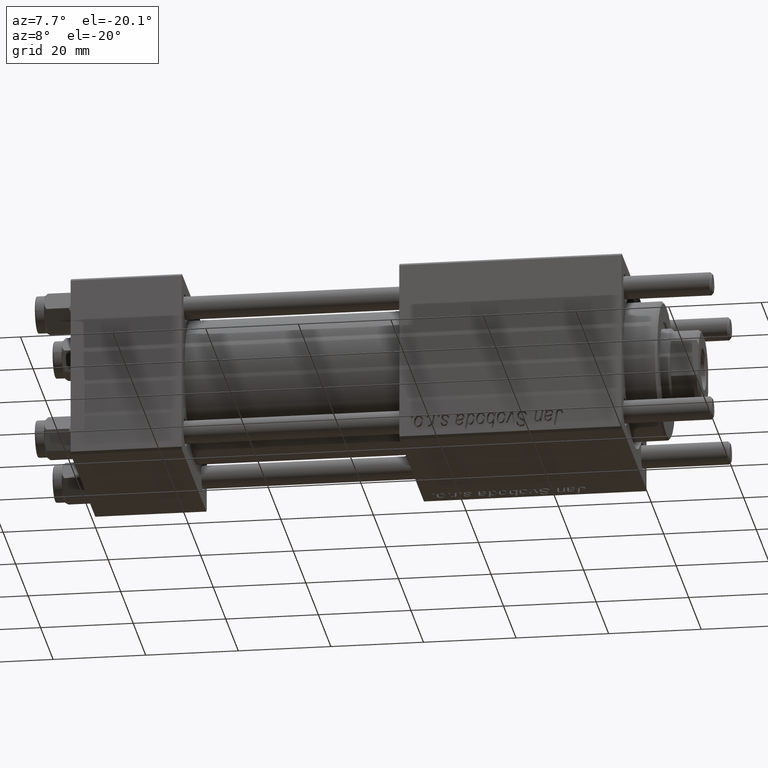
[diagram: clean part render]
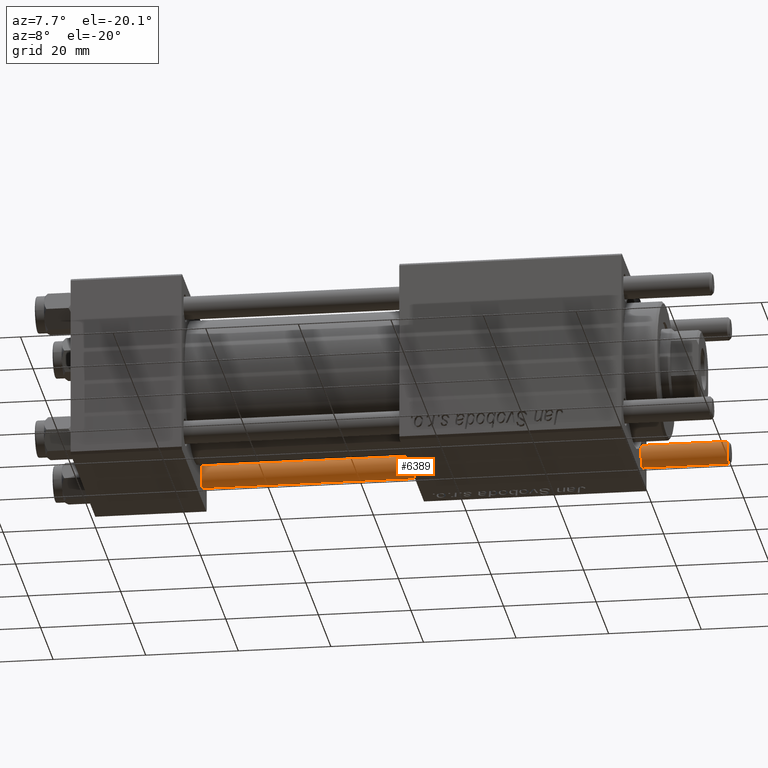
[diagram: same view with one face highlighted and labeled with its STEP entity id]
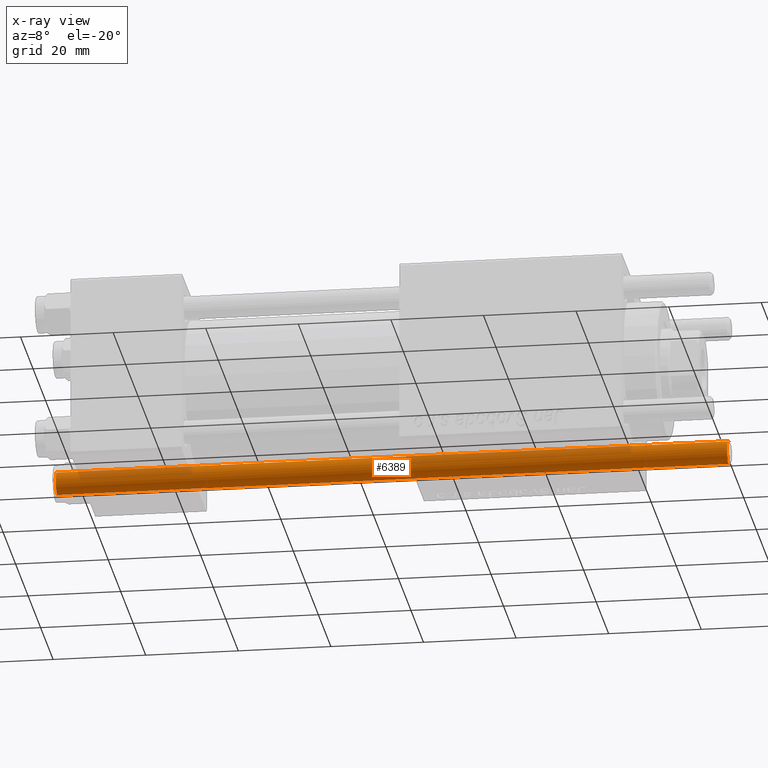
[diagram: x-ray of the same camera — body ghosted, the highlighted face saturated]
A machine part, auxiliary view. The second image highlights one B-rep face of the part: STEP entity #6389.
The next image is the same camera in x-ray: the body ghosted, the highlighted face saturated — about 18% of this face is hidden behind the body in this view.
In plain terms, the highlighted cylindrical surface (edge-blend (fillet) strip) has radius 2.5 mm, axis along (-1, -0, 0).
Its self-contained STEP definition (entity closure, byte-faithful):
#1382 = VERTEX_POINT ( 'NONE', #8318 ) ;
#3250 = FACE_OUTER_BOUND ( 'NONE', #32576, .T. ) ;
#5473 = DIRECTION ( 'NONE',  ( -0.000000000000000000, -0.000000000000000000, 1.000000000000000000 ) ) ;
#6389 = ADVANCED_FACE ( 'NONE', ( #3250 ), #42801, .T. ) ;
#7440 = CARTESIAN_POINT ( 'NONE',  ( 2.500000000000000000, 3.061616997868383141E-16, 145.5000000000000284 ) ) ;
#7465 = CARTESIAN_POINT ( 'NONE',  ( -2.500000000000000000, 0.000000000000000000, 0.5000000000000559552 ) ) ;
#7735 = LINE ( 'NONE', #51297, #10144 ) ;
#8318 = CARTESIAN_POINT ( 'NONE',  ( -2.500000000000000000, 0.000000000000000000, 145.5000000000000284 ) ) ;
#8471 = DIRECTION ( 'NONE',  ( 0.000000000000000000, 0.000000000000000000, -1.000000000000000000 ) ) ;
#9825 = EDGE_CURVE ( 'NONE', #1382, #24544, #7735, .T. ) ;
#10144 = VECTOR ( 'NONE', #46721, 1000.000000000000000 ) ;
#12417 = DIRECTION ( 'NONE',  ( -1.000000000000000000, 0.000000000000000000, 0.000000000000000000 ) ) ;
#13115 = EDGE_CURVE ( 'NONE', #53417, #41881, #27992, .T. ) ;
#18476 = ORIENTED_EDGE ( 'NONE', *, *, #42760, .T. ) ;
#18644 = DIRECTION ( 'NONE',  ( 1.000000000000000000, 0.000000000000000000, 0.000000000000000000 ) ) ;
#21358 = CARTESIAN_POINT ( 'NONE',  ( 2.500000000000000000, 3.061616997868383141E-16, 0.5000000000000559552 ) ) ;
#24544 = VERTEX_POINT ( 'NONE', #7465 ) ;
#26343 = ORIENTED_EDGE ( 'NONE', *, *, #9825, .T. ) ;
#26793 = CARTESIAN_POINT ( 'NONE',  ( 0.000000000000000000, 0.000000000000000000, 145.5000000000000284 ) ) ;
#27992 = LINE ( 'NONE', #40617, #30346 ) ;
#30346 = VECTOR ( 'NONE', #40905, 1000.000000000000000 ) ;
#30761 = AXIS2_PLACEMENT_3D ( 'NONE', #36702, #5473, #18644 ) ;
#31058 = AXIS2_PLACEMENT_3D ( 'NONE', #55979, #34195, #12417 ) ;
#32576 = EDGE_LOOP ( 'NONE', ( #39099, #18476, #26343, #43707 ) ) ;
#33416 = CIRCLE ( 'NONE', #49905, 2.500000000000000000 ) ;
#34195 = DIRECTION ( 'NONE',  ( -0.000000000000000000, -0.000000000000000000, -1.000000000000000000 ) ) ;
#36702 = CARTESIAN_POINT ( 'NONE',  ( 0.000000000000000000, 0.000000000000000000, 0.5000000000000559552 ) ) ;
#39099 = ORIENTED_EDGE ( 'NONE', *, *, #13115, .F. ) ;
#40617 = CARTESIAN_POINT ( 'NONE',  ( 2.500000000000000000, 3.061616997868383141E-16, 146.0000000000000000 ) ) ;
#40905 = DIRECTION ( 'NONE',  ( -0.000000000000000000, -0.000000000000000000, -1.000000000000000000 ) ) ;
#41881 = VERTEX_POINT ( 'NONE', #21358 ) ;
#42760 = EDGE_CURVE ( 'NONE', #53417, #1382, #33416, .T. ) ;
#42801 = CYLINDRICAL_SURFACE ( 'NONE', #31058, 2.500000000000000000 ) ;
#43707 = ORIENTED_EDGE ( 'NONE', *, *, #50716, .T. ) ;
#46721 = DIRECTION ( 'NONE',  ( -0.000000000000000000, -0.000000000000000000, -1.000000000000000000 ) ) ;
#48578 = DIRECTION ( 'NONE',  ( 1.000000000000000000, 0.000000000000000000, 0.000000000000000000 ) ) ;
#49905 = AXIS2_PLACEMENT_3D ( 'NONE', #26793, #8471, #48578 ) ;
#50716 = EDGE_CURVE ( 'NONE', #24544, #41881, #55471, .T. ) ;
#51297 = CARTESIAN_POINT ( 'NONE',  ( -2.500000000000000000, 0.000000000000000000, 146.0000000000000000 ) ) ;
#53417 = VERTEX_POINT ( 'NONE', #7440 ) ;
#55471 = CIRCLE ( 'NONE', #30761, 2.500000000000000000 ) ;
#55979 = CARTESIAN_POINT ( 'NONE',  ( 0.000000000000000000, 0.000000000000000000, 146.0000000000000000 ) ) ;